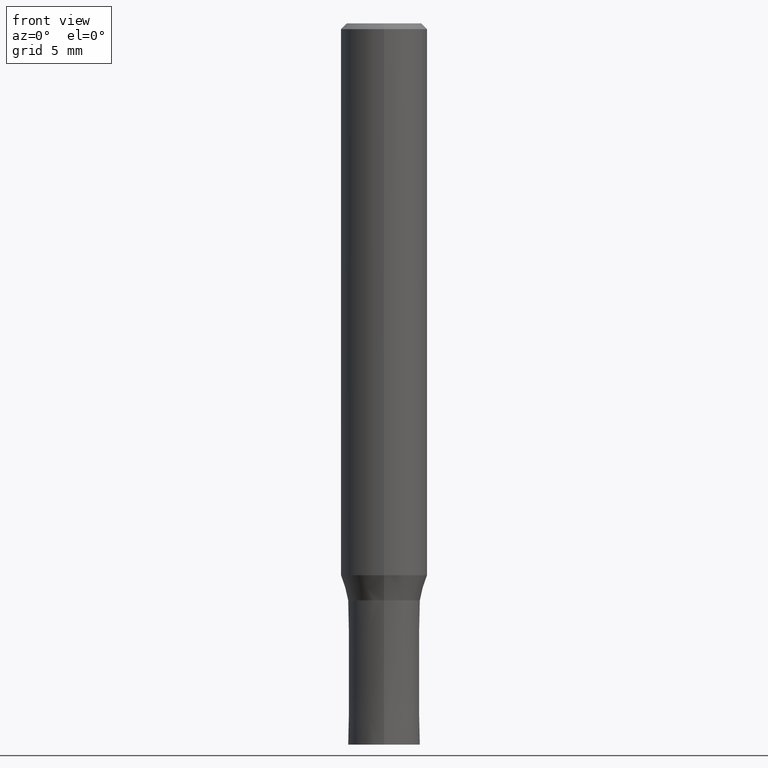
[diagram: clean part render]
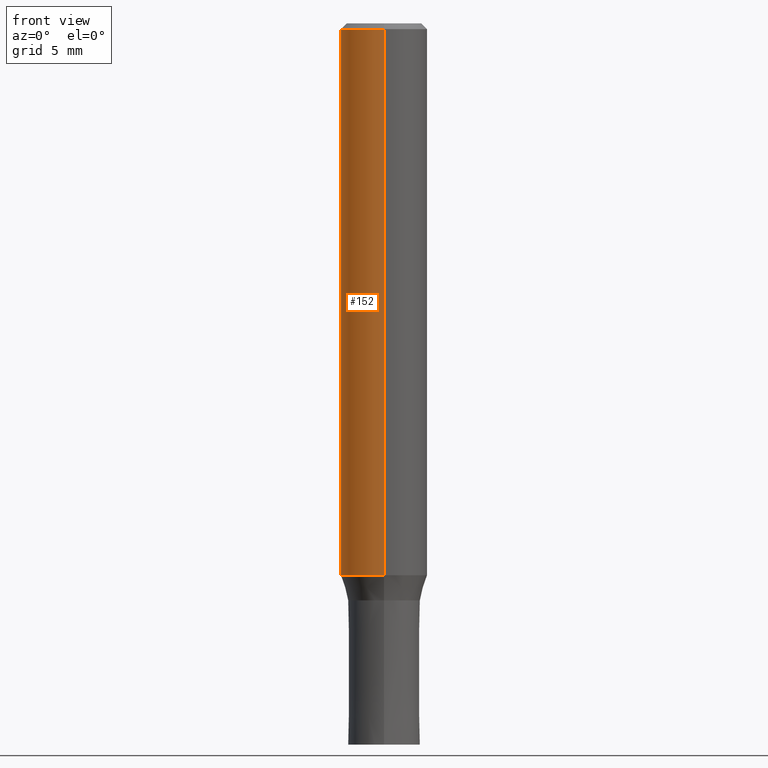
[diagram: same view with one face highlighted and labeled with its STEP entity id]
A machine part, front view. The second image highlights one B-rep face of the part: STEP entity #152.
In plain terms, the highlighted cylindrical surface (partial cylindrical patch) has radius 3 mm, axis along (-0, -0, 1).
Its self-contained STEP definition (entity closure, byte-faithful):
#84=VERTEX_POINT('',#205);
#110=EDGE_CURVE('',#154,#180,#233,.T.);
#148=EDGE_CURVE('',#180,#168,#279,.T.);
#152=ADVANCED_FACE('',(#283),#284,.T.);
#154=VERTEX_POINT('',#286);
#168=VERTEX_POINT('',#301);
#170=EDGE_CURVE('',#84,#154,#303,.T.);
#178=EDGE_CURVE('',#84,#168,#312,.T.);
#180=VERTEX_POINT('',#314);
#205=CARTESIAN_POINT('',(3.67381906146713E-016,-3.0,-38.256));
#233=CIRCLE('',#366,3.0);
#279=LINE('',#421,#422);
#283=FACE_OUTER_BOUND('',#427,.T.);
#284=CYLINDRICAL_SURFACE('',#428,3.0);
#286=CARTESIAN_POINT('',(3.67381906146713E-016,-3.0,-0.399999999999999));
#301=CARTESIAN_POINT('',(0.0,3.0,-38.256));
#303=LINE('',#453,#454);
#312=CIRCLE('',#466,3.0);
#314=CARTESIAN_POINT('',(0.0,3.0,-0.399999999999999));
#366=AXIS2_PLACEMENT_3D('',#506,#507,#508);
#421=CARTESIAN_POINT('',(-3.67381906146713E-016,3.0,-19.328));
#422=VECTOR('',#572,1.0);
#427=EDGE_LOOP('',(#577,#578,#579,#580));
#428=AXIS2_PLACEMENT_3D('',#581,#582,#583);
#453=CARTESIAN_POINT('',(3.67381906146713E-016,-3.0,-19.328));
#454=VECTOR('',#602,1.0);
#466=AXIS2_PLACEMENT_3D('',#612,#613,#614);
#506=CARTESIAN_POINT('',(0.0,0.0,-0.399999999999999));
#507=DIRECTION('',(0.0,0.0,-1.0));
#508=DIRECTION('',(0.0,1.0,0.0));
#572=DIRECTION('',(0.0,0.0,-1.0));
#577=ORIENTED_EDGE('',*,*,#148,.T.);
#578=ORIENTED_EDGE('',*,*,#178,.F.);
#579=ORIENTED_EDGE('',*,*,#170,.T.);
#580=ORIENTED_EDGE('',*,*,#110,.T.);
#581=CARTESIAN_POINT('',(0.0,0.0,-19.328));
#582=DIRECTION('',(-0.0,-0.0,1.0));
#583=DIRECTION('',(0.0,1.0,0.0));
#602=DIRECTION('',(-0.0,-0.0,1.0));
#612=CARTESIAN_POINT('',(0.0,0.0,-38.256));
#613=DIRECTION('',(0.0,0.0,-1.0));
#614=DIRECTION('',(0.0,1.0,0.0));